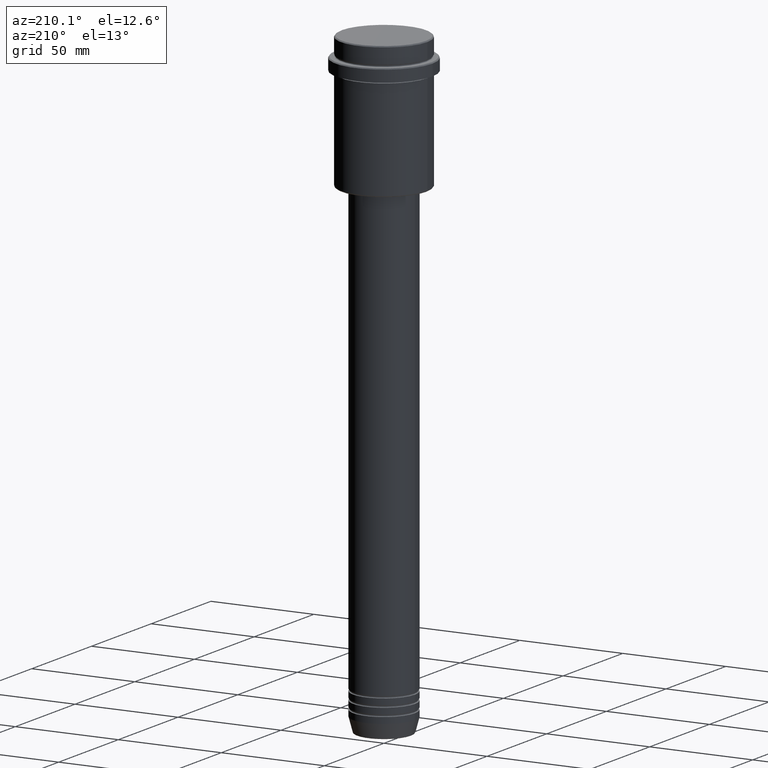
[diagram: clean part render]
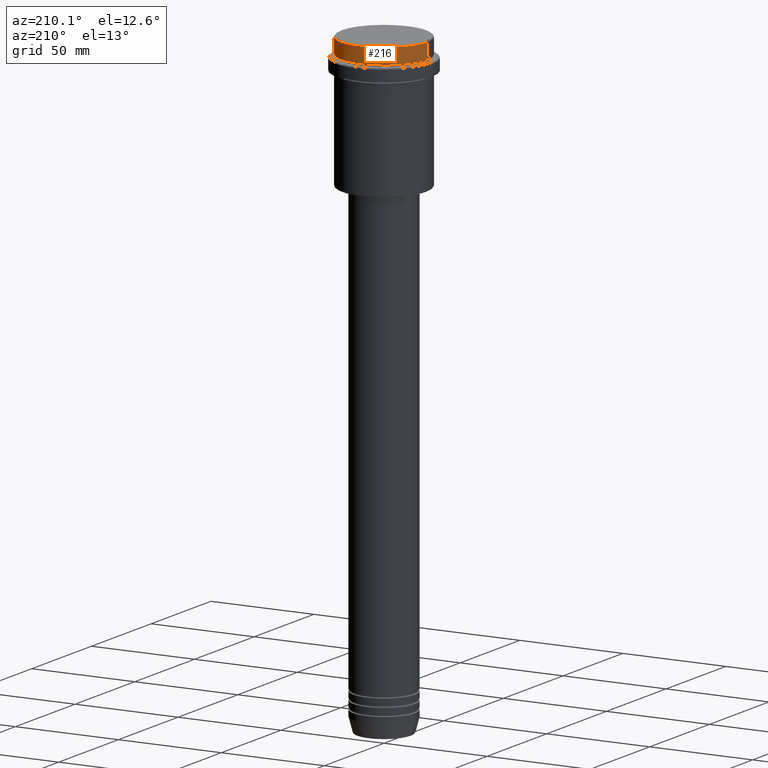
[diagram: same view with one face highlighted and labeled with its STEP entity id]
A machine part, auxiliary view. The second image highlights one B-rep face of the part: STEP entity #216.
In plain terms, the highlighted cylindrical surface (partial cylindrical patch) has radius 21 mm, axis along (-0, -0, 1).
Its self-contained STEP definition (entity closure, byte-faithful):
#143 = EDGE_CURVE ( 'NONE', #893, #1025, #758, .T. ) ;
#169 = EDGE_LOOP ( 'NONE', ( #1248, #587, #1057, #1044 ) ) ;
#209 = DIRECTION ( 'NONE',  ( -0.000000000000000000, -0.000000000000000000, 1.000000000000000000 ) ) ;
#216 = ADVANCED_FACE ( 'NONE', ( #683 ), #889, .T. ) ;
#230 = CARTESIAN_POINT ( 'NONE',  ( 0.000000000000000000, 0.000000000000000000, 0.000000000000000000 ) ) ;
#271 = AXIS2_PLACEMENT_3D ( 'NONE', #1214, #1092, #991 ) ;
#286 = CARTESIAN_POINT ( 'NONE',  ( -20.99999999999999645, 2.571758278209441267E-15, -7.999999999999998224 ) ) ;
#315 = CARTESIAN_POINT ( 'NONE',  ( 20.99999999999999645, 0.000000000000000000, 0.000000000000000000 ) ) ;
#328 = CARTESIAN_POINT ( 'NONE',  ( -20.99999999999999645, 2.571758278209441267E-15, 0.000000000000000000 ) ) ;
#503 = CIRCLE ( 'NONE', #271, 20.99999999999999645 ) ;
#564 = AXIS2_PLACEMENT_3D ( 'NONE', #230, #801, #895 ) ;
#587 = ORIENTED_EDGE ( 'NONE', *, *, #143, .T. ) ;
#637 = DIRECTION ( 'NONE',  ( 1.000000000000000000, 0.000000000000000000, 0.000000000000000000 ) ) ;
#683 = FACE_OUTER_BOUND ( 'NONE', #169, .T. ) ;
#747 = EDGE_CURVE ( 'NONE', #1025, #921, #1142, .T. ) ;
#755 = CARTESIAN_POINT ( 'NONE',  ( 0.000000000000000000, 0.000000000000000000, -0.4999999999999518718 ) ) ;
#758 = LINE ( 'NONE', #328, #1235 ) ;
#777 = VECTOR ( 'NONE', #1299, 1000.000000000000000 ) ;
#801 = DIRECTION ( 'NONE',  ( -0.000000000000000000, -0.000000000000000000, 1.000000000000000000 ) ) ;
#850 = DIRECTION ( 'NONE',  ( 0.000000000000000000, 0.000000000000000000, -1.000000000000000000 ) ) ;
#859 = LINE ( 'NONE', #315, #777 ) ;
#869 = CARTESIAN_POINT ( 'NONE',  ( 20.99999999999999645, 0.000000000000000000, -7.999999999999998224 ) ) ;
#885 = CARTESIAN_POINT ( 'NONE',  ( 20.99999999999999645, 0.000000000000000000, -0.4999999999999518718 ) ) ;
#889 = CYLINDRICAL_SURFACE ( 'NONE', #564, 20.99999999999999645 ) ;
#893 = VERTEX_POINT ( 'NONE', #286 ) ;
#895 = DIRECTION ( 'NONE',  ( 1.000000000000000000, 0.000000000000000000, 0.000000000000000000 ) ) ;
#921 = VERTEX_POINT ( 'NONE', #885 ) ;
#991 = DIRECTION ( 'NONE',  ( 1.000000000000000000, 0.000000000000000000, 0.000000000000000000 ) ) ;
#1025 = VERTEX_POINT ( 'NONE', #1038 ) ;
#1038 = CARTESIAN_POINT ( 'NONE',  ( -20.99999999999999645, 2.571758278209441267E-15, -0.4999999999999518718 ) ) ;
#1044 = ORIENTED_EDGE ( 'NONE', *, *, #1141, .F. ) ;
#1057 = ORIENTED_EDGE ( 'NONE', *, *, #747, .T. ) ;
#1092 = DIRECTION ( 'NONE',  ( -0.000000000000000000, -0.000000000000000000, 1.000000000000000000 ) ) ;
#1095 = AXIS2_PLACEMENT_3D ( 'NONE', #755, #850, #637 ) ;
#1141 = EDGE_CURVE ( 'NONE', #1160, #921, #859, .T. ) ;
#1142 = CIRCLE ( 'NONE', #1095, 20.99999999999999645 ) ;
#1160 = VERTEX_POINT ( 'NONE', #869 ) ;
#1214 = CARTESIAN_POINT ( 'NONE',  ( 0.000000000000000000, 0.000000000000000000, -7.999999999999998224 ) ) ;
#1235 = VECTOR ( 'NONE', #209, 1000.000000000000000 ) ;
#1248 = ORIENTED_EDGE ( 'NONE', *, *, #1414, .T. ) ;
#1299 = DIRECTION ( 'NONE',  ( -0.000000000000000000, -0.000000000000000000, 1.000000000000000000 ) ) ;
#1414 = EDGE_CURVE ( 'NONE', #1160, #893, #503, .T. ) ;